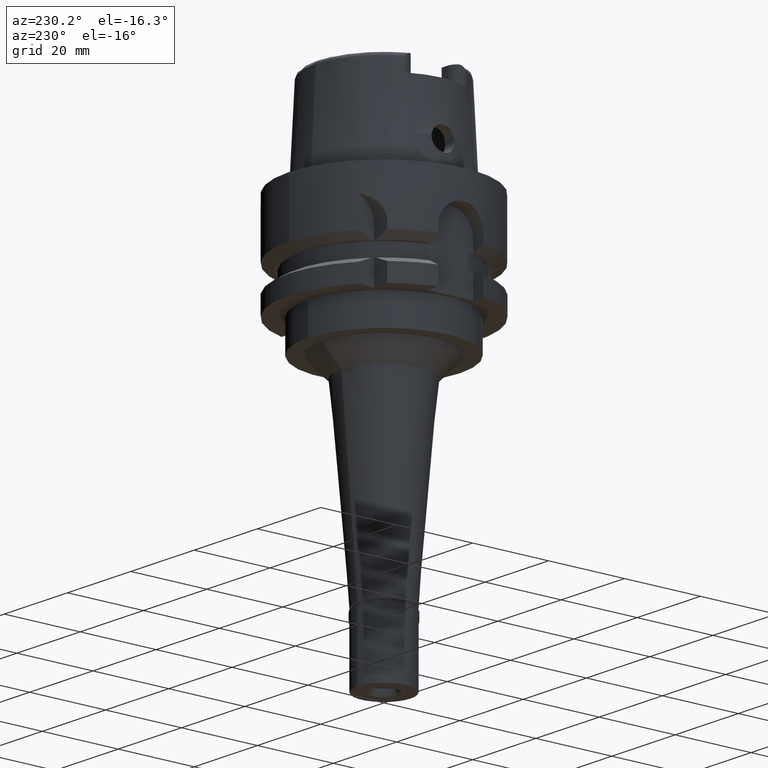
[diagram: clean part render]
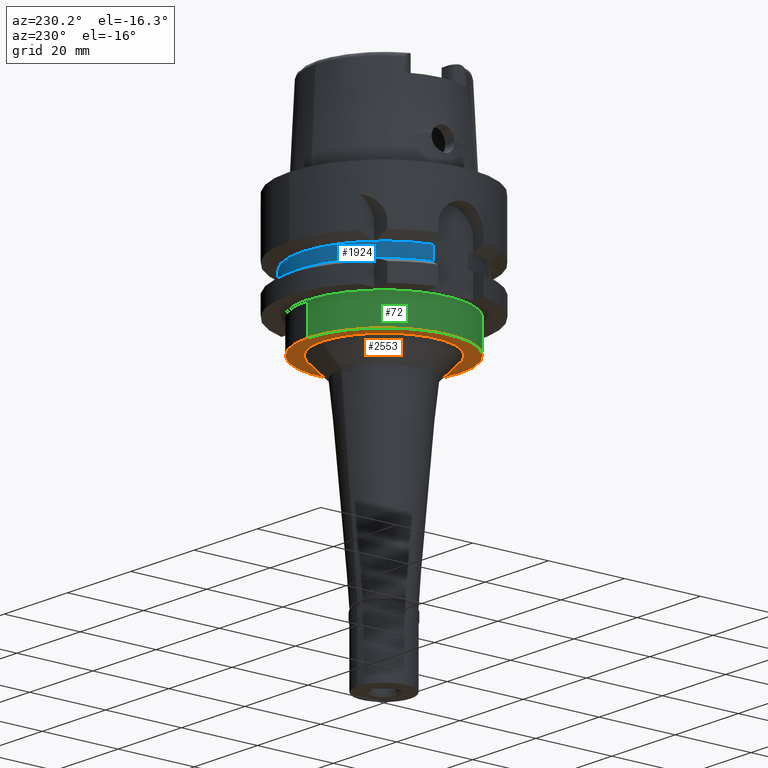
[diagram: same view with three faces highlighted in distinct colors, each labeled with its STEP entity id]
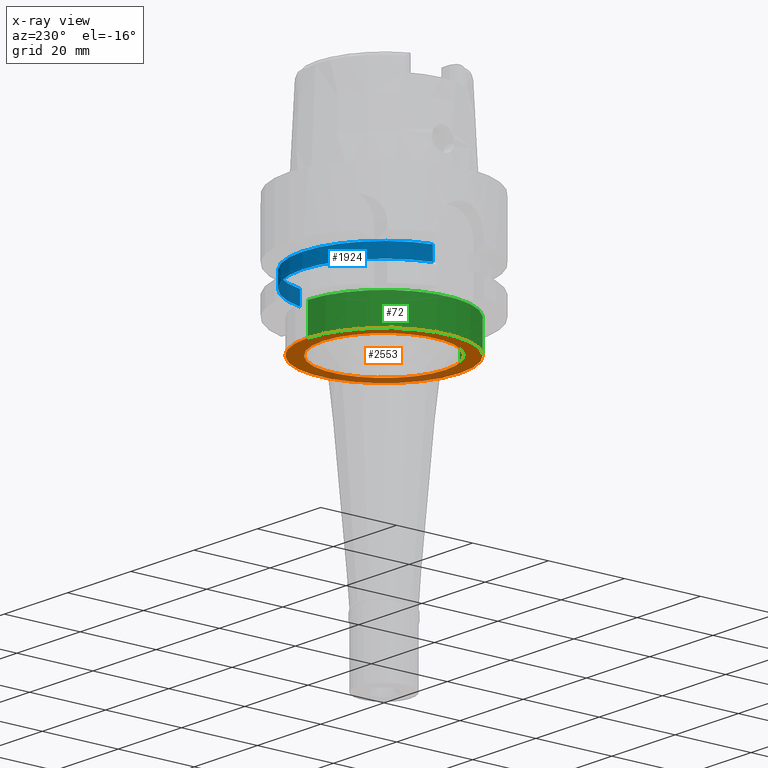
[diagram: x-ray of the same camera — body ghosted, the three highlighted faces saturated]
A machine part, auxiliary view with three faces highlighted in distinct colors.
The next image is the same camera in x-ray (body ghosted, the three faces saturated) — at least one of them is partly hidden behind the body in this view.
Their STEP definitions:

[orange] entity #2553 — the highlighted planar face has unit normal (0, 0, 1).
#55 = ORIENTED_EDGE ( 'NONE', *, *, #1520, .F. ) ;
#66 = AXIS2_PLACEMENT_3D ( 'NONE', #2367, #4043, #2455 ) ;
#127 = VERTEX_POINT ( 'NONE', #4862 ) ;
#154 = DIRECTION ( 'NONE',  ( 0.0000000000000000000, 0.0000000000000000000, 1.000000000000000000 ) ) ;
#235 = CARTESIAN_POINT ( 'NONE',  ( 0.0000000000000000000, 0.0000000000000000000, -34.00000000000000000 ) ) ;
#595 = EDGE_CURVE ( 'NONE', #4634, #127, #1588, .T. ) ;
#617 = ORIENTED_EDGE ( 'NONE', *, *, #2498, .F. ) ;
#618 = DIRECTION ( 'NONE',  ( 0.0000000000000000000, 0.0000000000000000000, 1.000000000000000000 ) ) ;
#823 = DIRECTION ( 'NONE',  ( 0.0000000000000000000, 1.000000000000000000, 0.0000000000000000000 ) ) ;
#1203 = DIRECTION ( 'NONE',  ( 0.0000000000000000000, 0.0000000000000000000, 1.000000000000000000 ) ) ;
#1285 = DIRECTION ( 'NONE',  ( 0.0000000000000000000, 1.000000000000000000, 0.0000000000000000000 ) ) ;
#1330 = CARTESIAN_POINT ( 'NONE',  ( 0.0000000000000000000, -16.22570244829999808, -34.00000000000000000 ) ) ;
#1393 = CARTESIAN_POINT ( 'NONE',  ( 0.0000000000000000000, -20.00000000000000000, -34.00000000000000000 ) ) ;
#1520 = EDGE_CURVE ( 'NONE', #3142, #3882, #4478, .T. ) ;
#1588 = CIRCLE ( 'NONE', #66, 16.22570244829999808 ) ;
#1787 = CIRCLE ( 'NONE', #2297, 20.00000000000000000 ) ;
#1863 = FACE_OUTER_BOUND ( 'NONE', #3924, .T. ) ;
#1963 = ORIENTED_EDGE ( 'NONE', *, *, #595, .F. ) ;
#1988 = EDGE_LOOP ( 'NONE', ( #3399, #1963 ) ) ;
#2093 = EDGE_CURVE ( 'NONE', #127, #4634, #3005, .T. ) ;
#2211 = AXIS2_PLACEMENT_3D ( 'NONE', #235, #618, #2342 ) ;
#2297 = AXIS2_PLACEMENT_3D ( 'NONE', #4303, #154, #4250 ) ;
#2342 = DIRECTION ( 'NONE',  ( 1.000000000000000000, 0.0000000000000000000, 0.0000000000000000000 ) ) ;
#2367 = CARTESIAN_POINT ( 'NONE',  ( 0.0000000000000000000, 0.0000000000000000000, -34.00000000000000000 ) ) ;
#2455 = DIRECTION ( 'NONE',  ( 0.0000000000000000000, -1.000000000000000000, 0.0000000000000000000 ) ) ;
#2498 = EDGE_CURVE ( 'NONE', #3882, #3142, #1787, .T. ) ;
#2553 = ADVANCED_FACE ( 'NONE', ( #1863, #4356 ), #4020, .F. ) ;
#2628 = CARTESIAN_POINT ( 'NONE',  ( 0.0000000000000000000, 0.0000000000000000000, -34.00000000000000000 ) ) ;
#2693 = CARTESIAN_POINT ( 'NONE',  ( 0.0000000000000000000, 20.00000000000000000, -34.00000000000000000 ) ) ;
#2870 = CARTESIAN_POINT ( 'NONE',  ( 0.0000000000000000000, 0.0000000000000000000, -34.00000000000000000 ) ) ;
#3005 = CIRCLE ( 'NONE', #4148, 16.22570244829999808 ) ;
#3071 = DIRECTION ( 'NONE',  ( 0.0000000000000000000, 0.0000000000000000000, -1.000000000000000000 ) ) ;
#3142 = VERTEX_POINT ( 'NONE', #2693 ) ;
#3399 = ORIENTED_EDGE ( 'NONE', *, *, #2093, .F. ) ;
#3882 = VERTEX_POINT ( 'NONE', #1393 ) ;
#3924 = EDGE_LOOP ( 'NONE', ( #55, #617 ) ) ;
#3959 = AXIS2_PLACEMENT_3D ( 'NONE', #2870, #1203, #823 ) ;
#4020 = PLANE ( 'NONE',  #2211 ) ;
#4043 = DIRECTION ( 'NONE',  ( 0.0000000000000000000, 0.0000000000000000000, -1.000000000000000000 ) ) ;
#4148 = AXIS2_PLACEMENT_3D ( 'NONE', #2628, #3071, #1285 ) ;
#4250 = DIRECTION ( 'NONE',  ( 0.0000000000000000000, -1.000000000000000000, 0.0000000000000000000 ) ) ;
#4303 = CARTESIAN_POINT ( 'NONE',  ( 0.0000000000000000000, 0.0000000000000000000, -34.00000000000000000 ) ) ;
#4356 = FACE_BOUND ( 'NONE', #1988, .T. ) ;
#4478 = CIRCLE ( 'NONE', #3959, 20.00000000000000000 ) ;
#4634 = VERTEX_POINT ( 'NONE', #1330 ) ;
#4862 = CARTESIAN_POINT ( 'NONE',  ( 0.0000000000000000000, 16.22570244829999808, -34.00000000000000000 ) ) ;

[blue] entity #1924 — the highlighted cylindrical surface (partial cylindrical patch) has radius 21.5 mm, axis along (0, 0, 1).
#471 = CARTESIAN_POINT ( 'NONE',  ( 21.00000000000000000, 4.609772228645999448, -19.87500000000000000 ) ) ;
#667 = CARTESIAN_POINT ( 'NONE',  ( 0.0000000000000000000, 0.0000000000000000000, -107.3000000000000114 ) ) ;
#782 = DIRECTION ( 'NONE',  ( 0.0000000000000000000, 0.0000000000000000000, -1.000000000000000000 ) ) ;
#1113 = CARTESIAN_POINT ( 'NONE',  ( 0.0000000000000000000, 0.0000000000000000000, -19.87500000000000000 ) ) ;
#1133 = VERTEX_POINT ( 'NONE', #2957 ) ;
#1186 = AXIS2_PLACEMENT_3D ( 'NONE', #667, #2251, #5184 ) ;
#1559 = CARTESIAN_POINT ( 'NONE',  ( -21.00000000000000000, 4.609772228645999448, -16.12500000000000000 ) ) ;
#1664 = VECTOR ( 'NONE', #1767, 1000.000000000000000 ) ;
#1666 = VERTEX_POINT ( 'NONE', #2157 ) ;
#1767 = DIRECTION ( 'NONE',  ( 0.0000000000000000000, 0.0000000000000000000, 1.000000000000000000 ) ) ;
#1924 = ADVANCED_FACE ( 'NONE', ( #5153 ), #3474, .T. ) ;
#2138 = ORIENTED_EDGE ( 'NONE', *, *, #4107, .T. ) ;
#2157 = CARTESIAN_POINT ( 'NONE',  ( -21.00000000000000000, 4.609772228645999448, -19.87500000000000000 ) ) ;
#2251 = DIRECTION ( 'NONE',  ( 0.0000000000000000000, 0.0000000000000000000, 1.000000000000000000 ) ) ;
#2477 = ORIENTED_EDGE ( 'NONE', *, *, #4741, .F. ) ;
#2479 = CARTESIAN_POINT ( 'NONE',  ( 0.0000000000000000000, 0.0000000000000000000, -16.12500000000000000 ) ) ;
#2587 = ORIENTED_EDGE ( 'NONE', *, *, #3666, .T. ) ;
#2754 = DIRECTION ( 'NONE',  ( 0.0000000000000000000, 0.0000000000000000000, 1.000000000000000000 ) ) ;
#2865 = VERTEX_POINT ( 'NONE', #1559 ) ;
#2957 = CARTESIAN_POINT ( 'NONE',  ( 21.00000000000000000, 4.609772228645999448, -19.87500000000000000 ) ) ;
#3125 = VECTOR ( 'NONE', #3780, 1000.000000000000000 ) ;
#3474 = CYLINDRICAL_SURFACE ( 'NONE', #1186, 21.50000000000000000 ) ;
#3590 = AXIS2_PLACEMENT_3D ( 'NONE', #1113, #2754, #4427 ) ;
#3666 = EDGE_CURVE ( 'NONE', #1133, #1666, #3884, .T. ) ;
#3733 = DIRECTION ( 'NONE',  ( -0.9767441860465149173, 0.2144080106347034664, 0.0000000000000000000 ) ) ;
#3780 = DIRECTION ( 'NONE',  ( 0.0000000000000000000, 0.0000000000000000000, -1.000000000000000000 ) ) ;
#3839 = ORIENTED_EDGE ( 'NONE', *, *, #4171, .F. ) ;
#3884 = CIRCLE ( 'NONE', #3590, 21.50000000000000000 ) ;
#4005 = CIRCLE ( 'NONE', #4865, 21.50000000000000000 ) ;
#4107 = EDGE_CURVE ( 'NONE', #2865, #4950, #4005, .T. ) ;
#4171 = EDGE_CURVE ( 'NONE', #2865, #1666, #4683, .T. ) ;
#4202 = LINE ( 'NONE', #471, #1664 ) ;
#4387 = CARTESIAN_POINT ( 'NONE',  ( 21.00000000000000000, 4.609772228645999448, -16.12500000000000000 ) ) ;
#4427 = DIRECTION ( 'NONE',  ( 0.0000000000000000000, 1.000000000000000000, 0.0000000000000000000 ) ) ;
#4683 = LINE ( 'NONE', #5071, #3125 ) ;
#4741 = EDGE_CURVE ( 'NONE', #1133, #4950, #4202, .T. ) ;
#4865 = AXIS2_PLACEMENT_3D ( 'NONE', #2479, #782, #3733 ) ;
#4950 = VERTEX_POINT ( 'NONE', #4387 ) ;
#5071 = CARTESIAN_POINT ( 'NONE',  ( -21.00000000000000000, 4.609772228645999448, -16.12500000000000000 ) ) ;
#5153 = FACE_OUTER_BOUND ( 'NONE', #5315, .T. ) ;
#5184 = DIRECTION ( 'NONE',  ( 0.0000000000000000000, 1.000000000000000000, 0.0000000000000000000 ) ) ;
#5315 = EDGE_LOOP ( 'NONE', ( #2138, #2477, #2587, #3839 ) ) ;

[green] entity #72 — the highlighted cylindrical surface (partial cylindrical patch) has radius 20 mm, axis along (0, 0, 1).
#72 = ADVANCED_FACE ( 'NONE', ( #5281 ), #3981, .T. ) ;
#148 = VERTEX_POINT ( 'NONE', #2384 ) ;
#368 = VERTEX_POINT ( 'NONE', #4378 ) ;
#433 = DIRECTION ( 'NONE',  ( 0.0000000000000000000, 0.0000000000000000000, -1.000000000000000000 ) ) ;
#446 = ORIENTED_EDGE ( 'NONE', *, *, #4930, .T. ) ;
#547 = EDGE_LOOP ( 'NONE', ( #3218, #1853, #446, #4472 ) ) ;
#689 = DIRECTION ( 'NONE',  ( 0.0000000000000000000, 0.0000000000000000000, 1.000000000000000000 ) ) ;
#823 = DIRECTION ( 'NONE',  ( 0.0000000000000000000, 1.000000000000000000, 0.0000000000000000000 ) ) ;
#1020 = DIRECTION ( 'NONE',  ( 0.0000000000000000000, 0.0000000000000000000, -1.000000000000000000 ) ) ;
#1203 = DIRECTION ( 'NONE',  ( 0.0000000000000000000, 0.0000000000000000000, 1.000000000000000000 ) ) ;
#1393 = CARTESIAN_POINT ( 'NONE',  ( 0.0000000000000000000, -20.00000000000000000, -34.00000000000000000 ) ) ;
#1411 = CIRCLE ( 'NONE', #2192, 20.00000000000000000 ) ;
#1438 = DIRECTION ( 'NONE',  ( 0.0000000000000000000, 0.0000000000000000000, -1.000000000000000000 ) ) ;
#1462 = CARTESIAN_POINT ( 'NONE',  ( 0.0000000000000000000, -20.00000000000000000, -26.00000000000000000 ) ) ;
#1520 = EDGE_CURVE ( 'NONE', #3142, #3882, #4478, .T. ) ;
#1619 = LINE ( 'NONE', #3285, #3699 ) ;
#1853 = ORIENTED_EDGE ( 'NONE', *, *, #4262, .F. ) ;
#2192 = AXIS2_PLACEMENT_3D ( 'NONE', #2631, #1020, #5121 ) ;
#2324 = DIRECTION ( 'NONE',  ( 0.0000000000000000000, 1.000000000000000000, 0.0000000000000000000 ) ) ;
#2384 = CARTESIAN_POINT ( 'NONE',  ( 0.0000000000000000000, -20.00000000000000000, -26.00000000000000000 ) ) ;
#2631 = CARTESIAN_POINT ( 'NONE',  ( 0.0000000000000000000, 0.0000000000000000000, -26.00000000000000000 ) ) ;
#2693 = CARTESIAN_POINT ( 'NONE',  ( 0.0000000000000000000, 20.00000000000000000, -34.00000000000000000 ) ) ;
#2870 = CARTESIAN_POINT ( 'NONE',  ( 0.0000000000000000000, 0.0000000000000000000, -34.00000000000000000 ) ) ;
#3142 = VERTEX_POINT ( 'NONE', #2693 ) ;
#3156 = LINE ( 'NONE', #1462, #4284 ) ;
#3218 = ORIENTED_EDGE ( 'NONE', *, *, #1520, .T. ) ;
#3285 = CARTESIAN_POINT ( 'NONE',  ( 0.0000000000000000000, 20.00000000000000000, -26.00000000000000000 ) ) ;
#3690 = CARTESIAN_POINT ( 'NONE',  ( 0.0000000000000000000, 0.0000000000000000000, -107.3000000000000114 ) ) ;
#3699 = VECTOR ( 'NONE', #433, 1000.000000000000000 ) ;
#3778 = EDGE_CURVE ( 'NONE', #368, #3142, #1619, .T. ) ;
#3882 = VERTEX_POINT ( 'NONE', #1393 ) ;
#3959 = AXIS2_PLACEMENT_3D ( 'NONE', #2870, #1203, #823 ) ;
#3981 = CYLINDRICAL_SURFACE ( 'NONE', #4887, 20.00000000000000000 ) ;
#4262 = EDGE_CURVE ( 'NONE', #148, #3882, #3156, .T. ) ;
#4284 = VECTOR ( 'NONE', #1438, 1000.000000000000000 ) ;
#4378 = CARTESIAN_POINT ( 'NONE',  ( 0.0000000000000000000, 20.00000000000000000, -26.00000000000000000 ) ) ;
#4472 = ORIENTED_EDGE ( 'NONE', *, *, #3778, .T. ) ;
#4478 = CIRCLE ( 'NONE', #3959, 20.00000000000000000 ) ;
#4887 = AXIS2_PLACEMENT_3D ( 'NONE', #3690, #689, #2324 ) ;
#4930 = EDGE_CURVE ( 'NONE', #148, #368, #1411, .T. ) ;
#5121 = DIRECTION ( 'NONE',  ( 0.0000000000000000000, -1.000000000000000000, 0.0000000000000000000 ) ) ;
#5281 = FACE_OUTER_BOUND ( 'NONE', #547, .T. ) ;